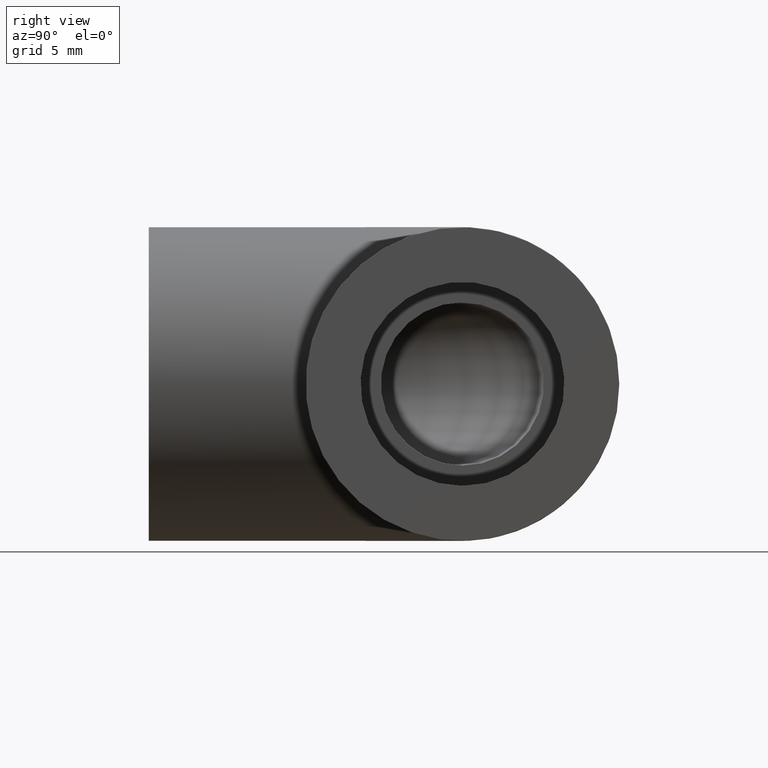
[diagram: clean part render]
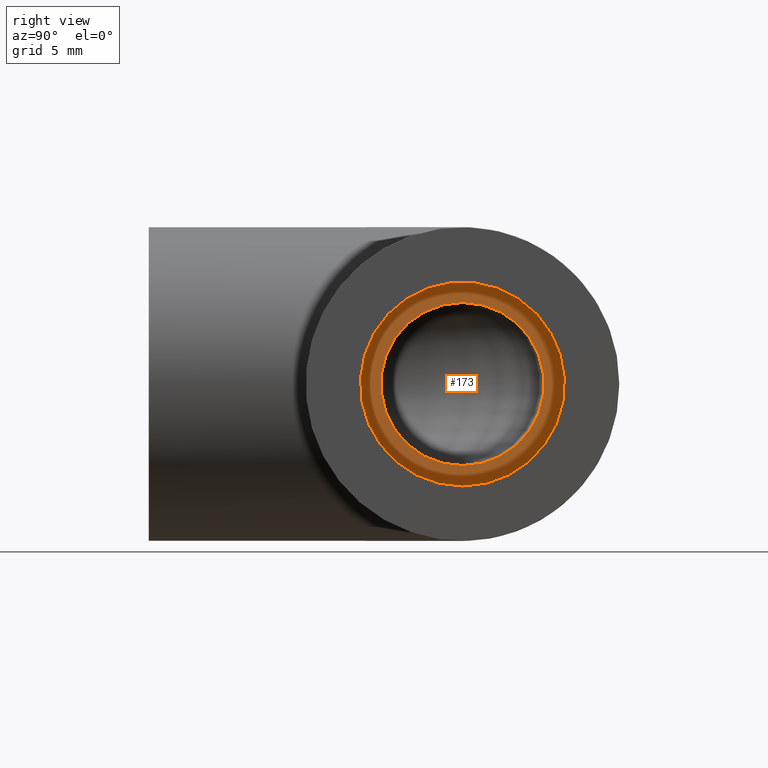
[diagram: same view with one face highlighted and labeled with its STEP entity id]
A machine part, right view. The second image highlights one B-rep face of the part: STEP entity #173.
In plain terms, the highlighted planar face has unit normal (1, 0, 0).
Its self-contained STEP definition (entity closure, byte-faithful):
#20=PLANE('',#198);
#30=FACE_BOUND('',#66,.T.);
#44=FACE_OUTER_BOUND('',#65,.T.);
#65=EDGE_LOOP('',(#140));
#66=EDGE_LOOP('',(#141));
#85=CIRCLE('',#190,5.98);
#88=CIRCLE('',#196,7.475);
#100=VERTEX_POINT('',#289);
#103=VERTEX_POINT('',#298);
#115=EDGE_CURVE('',#100,#100,#85,.T.);
#118=EDGE_CURVE('',#103,#103,#88,.T.);
#140=ORIENTED_EDGE('',*,*,#118,.F.);
#141=ORIENTED_EDGE('',*,*,#115,.T.);
#173=ADVANCED_FACE('',(#44,#30),#20,.T.);
#190=AXIS2_PLACEMENT_3D('',#290,#229,#230);
#196=AXIS2_PLACEMENT_3D('',#299,#241,#242);
#198=AXIS2_PLACEMENT_3D('',#302,#245,#246);
#229=DIRECTION('center_axis',(-1.,0.,0.));
#230=DIRECTION('ref_axis',(0.,0.,1.));
#241=DIRECTION('center_axis',(-1.,0.,0.));
#242=DIRECTION('ref_axis',(0.,0.,1.));
#245=DIRECTION('center_axis',(1.,0.,0.));
#246=DIRECTION('ref_axis',(0.,0.,-1.));
#289=CARTESIAN_POINT('',(9.5,7.32338785890117E-16,-5.98));
#290=CARTESIAN_POINT('Origin',(9.5,1.61808345976352E-51,0.));
#298=CARTESIAN_POINT('',(9.5,9.15423482362646E-16,-7.475));
#299=CARTESIAN_POINT('Origin',(9.5,0.,0.));
#302=CARTESIAN_POINT('Origin',(9.5,1.23770682789873E-16,3.23826655776632E-16));